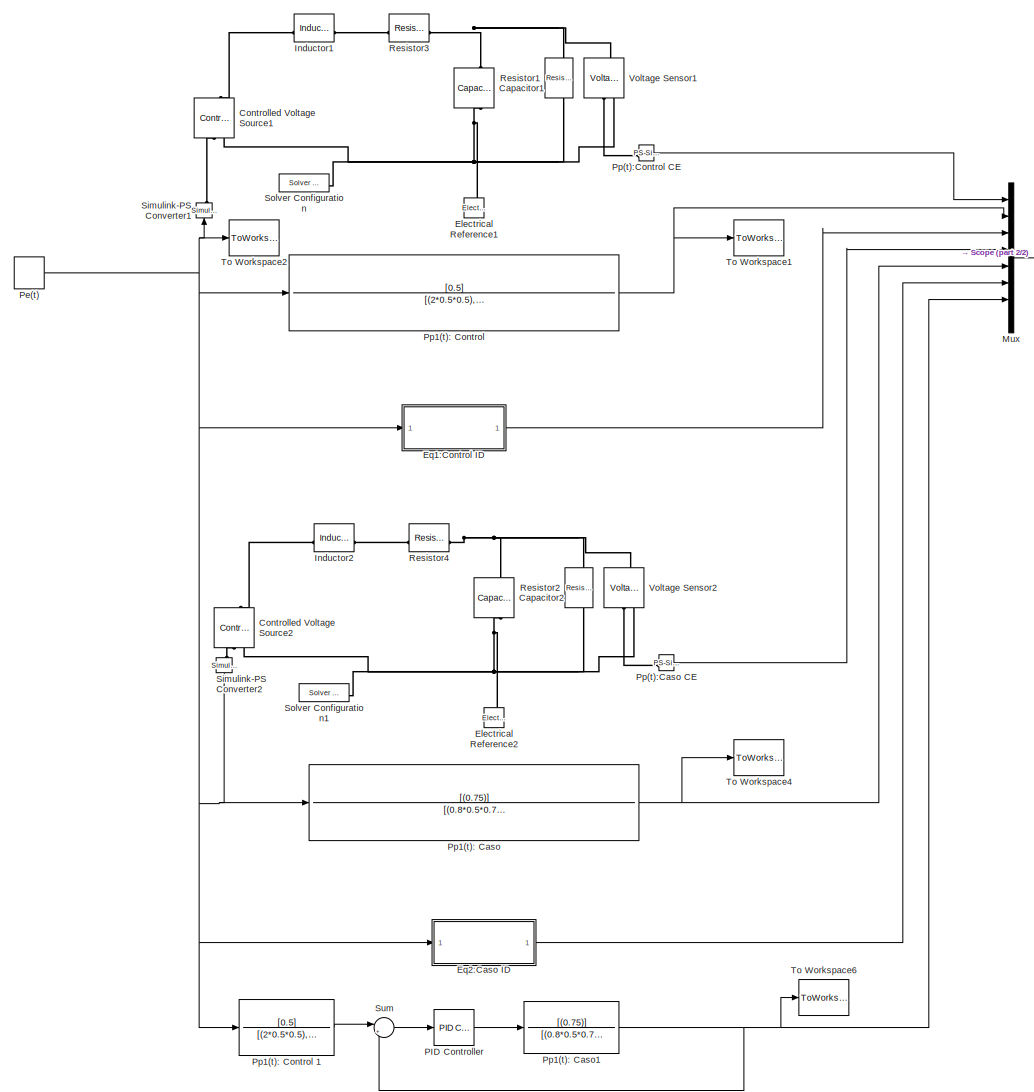
[diagram: root canvas - part 1/2, most of the canvas]
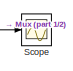
[diagram: root canvas - part 2/2, top right region]
MODEL slx_2ba7b782ccf6
KIND model
CONFIG AbsTol = auto
CONFIG EnableMultiTasking = off
CONFIG FixedStep = auto
CONFIG MaxStep = auto
CONFIG MinStep = auto
CONFIG RelTol = 1e-3
CONFIG SampleTimeConstraint = Unconstrained
CONFIG SolverName = ode15s
CONFIG StartTime = 0.0
CONFIG StopTime = 5.0
BLOCK [Reference] Capacitor1  REF=fl_lib/Electrical/Electrical Elements/Capacitor
  NameLocation = left
  SourceBlock = fl_lib/Electrical/Electrical Elements/Capacitor
  SourceType = Capacitor
BLOCK [Reference] Capacitor2  REF=fl_lib/Electrical/Electrical Elements/Capacitor
  NameLocation = left
  SourceBlock = fl_lib/Electrical/Electrical Elements/Capacitor
  SourceType = Capacitor
BLOCK [Reference] Controlled Voltage Source1  REF=fl_lib/Electrical/Electrical Sources/Controlled Voltage
Source
  NameLocation = right
  SourceBlock = fl_lib/Electrical/Electrical Sources/Controlled Voltage\nSource
  SourceType = Controlled Voltage\nSource
BLOCK [Reference] Controlled Voltage Source2  REF=fl_lib/Electrical/Electrical Sources/Controlled Voltage
Source
  NameLocation = right
  SourceBlock = fl_lib/Electrical/Electrical Sources/Controlled Voltage\nSource
  SourceType = Controlled Voltage\nSource
BLOCK [Reference] Electrical Reference1  REF=fl_lib/Electrical/Electrical Elements/Electrical Reference
  NameLocation = right
  SourceBlock = fl_lib/Electrical/Electrical Elements/Electrical Reference
  SourceType = Electrical Reference
BLOCK [Reference] Electrical Reference2  REF=fl_lib/Electrical/Electrical Elements/Electrical Reference
  NameLocation = right
  SourceBlock = fl_lib/Electrical/Electrical Elements/Electrical Reference
  SourceType = Electrical Reference
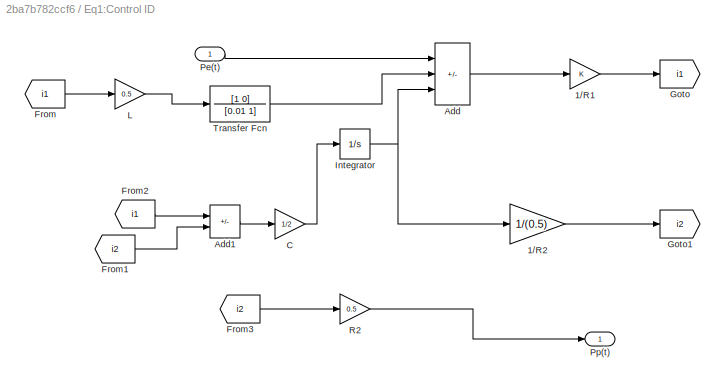
BLOCK [SubSystem] Eq1:Control ID
BLOCK [Gain] Eq1:Control ID/1//R1
BLOCK [Gain] Eq1:Control ID/1//R2
  Gain = 1/(0.5)
BLOCK [Sum] Eq1:Control ID/Add
  IconShape = rectangular
  Inputs = +--
BLOCK [Sum] Eq1:Control ID/Add1
  IconShape = rectangular
  Inputs = +-
BLOCK [Gain] Eq1:Control ID/C
  Gain = 1/2
BLOCK [From] Eq1:Control ID/From
  GotoTag = i1
BLOCK [From] Eq1:Control ID/From1
  GotoTag = i2
BLOCK [From] Eq1:Control ID/From2
  GotoTag = i1
BLOCK [From] Eq1:Control ID/From3
  GotoTag = i2
BLOCK [Goto] Eq1:Control ID/Goto
  GotoTag = i1
BLOCK [Goto] Eq1:Control ID/Goto1
  GotoTag = i2
BLOCK [Integrator] Eq1:Control ID/Integrator
BLOCK [Gain] Eq1:Control ID/L
  Gain = 0.5
BLOCK [Inport] Eq1:Control ID/Pe(t)
BLOCK [Outport] Eq1:Control ID/Pp(t)
BLOCK [Gain] Eq1:Control ID/R2
  Gain = 0.5
BLOCK [TransferFcn] Eq1:Control ID/Transfer Fcn
  Denominator = [0.01 1]
  Numerator = [1 0]
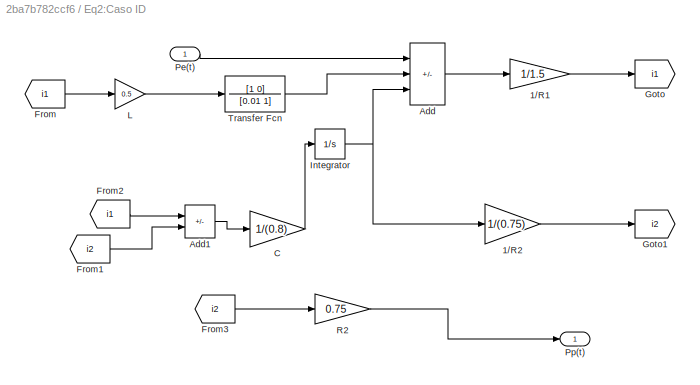
BLOCK [SubSystem] Eq2:Caso ID
BLOCK [Gain] Eq2:Caso ID/1//R1
  Gain = 1/1.5
BLOCK [Gain] Eq2:Caso ID/1//R2
  Gain = 1/(0.75)
BLOCK [Sum] Eq2:Caso ID/Add
  IconShape = rectangular
  Inputs = +--
BLOCK [Sum] Eq2:Caso ID/Add1
  IconShape = rectangular
  Inputs = +-
BLOCK [Gain] Eq2:Caso ID/C
  Gain = 1/(0.8)
BLOCK [From] Eq2:Caso ID/From
  GotoTag = i1
BLOCK [From] Eq2:Caso ID/From1
  GotoTag = i2
BLOCK [From] Eq2:Caso ID/From2
  GotoTag = i1
BLOCK [From] Eq2:Caso ID/From3
  GotoTag = i2
BLOCK [Goto] Eq2:Caso ID/Goto
  GotoTag = i1
BLOCK [Goto] Eq2:Caso ID/Goto1
  GotoTag = i2
BLOCK [Integrator] Eq2:Caso ID/Integrator
BLOCK [Gain] Eq2:Caso ID/L
  Gain = 0.5
BLOCK [Inport] Eq2:Caso ID/Pe(t)
BLOCK [Outport] Eq2:Caso ID/Pp(t)
BLOCK [Gain] Eq2:Caso ID/R2
  Gain = 0.75
BLOCK [TransferFcn] Eq2:Caso ID/Transfer Fcn
  Denominator = [0.01 1]
  Numerator = [1 0]
BLOCK [Reference] Inductor1  REF=fl_lib/Electrical/Electrical Elements/Inductor
  SourceBlock = fl_lib/Electrical/Electrical Elements/Inductor
  SourceType = Inductor
BLOCK [Reference] Inductor2  REF=fl_lib/Electrical/Electrical Elements/Inductor
  SourceBlock = fl_lib/Electrical/Electrical Elements/Inductor
  SourceType = Inductor
BLOCK [Mux] Mux
  DisplayOption = bar
  Inputs = 8
BLOCK [Reference] PID Controller  REF=slpidlib/PID Controller
  LibrarySourceBlock = simulink/Continuous/PID Controller
  SourceBlock = slpidlib/PID Controller
  SourceType = PID 1dof
BLOCK [DiscretePulseGenerator] Pe(t)
  Period = 10
  PhaseDelay = 1
  PulseType = Time based
  PulseWidth = 5
BLOCK [Reference] Pp(t):Caso CE  REF=nesl_utility/PS-Simulink
Converter
  SourceBlock = nesl_utility/PS-Simulink\nConverter
  SourceType = PS-Simulink\nConverter
BLOCK [Reference] Pp(t):Control CE  REF=nesl_utility/PS-Simulink
Converter
  SourceBlock = nesl_utility/PS-Simulink\nConverter
  SourceType = PS-Simulink\nConverter
BLOCK [TransferFcn] Pp1(t): Caso
  Denominator = [(0.8*0.5*0.75), (0.5+0.8*0.75*1.5), (1.5+0.75) ]
  Numerator = [(0.75)]
BLOCK [TransferFcn] Pp1(t): Caso1
  Denominator = [(0.8*0.5*0.75), (0.5+0.8*0.75*1.5), (1.5+0.75) ]
  Numerator = [(0.75)]
BLOCK [TransferFcn] Pp1(t): Control 
  Denominator = [(2*0.5*0.5), (0.5+2*0.5*1), (1+0.5) ]
  Numerator = [0.5]
BLOCK [TransferFcn] Pp1(t): Control 1
  Denominator = [(2*0.5*0.5), (0.5+2*0.5*1), (1+0.5) ]
  Numerator = [0.5]
BLOCK [Reference] Resistor1  REF=fl_lib/Electrical/Electrical Elements/Resistor
  NameLocation = right
  SourceBlock = fl_lib/Electrical/Electrical Elements/Resistor
  SourceType = Resistor
BLOCK [Reference] Resistor2  REF=fl_lib/Electrical/Electrical Elements/Resistor
  NameLocation = right
  SourceBlock = fl_lib/Electrical/Electrical Elements/Resistor
  SourceType = Resistor
BLOCK [Reference] Resistor3  REF=fl_lib/Electrical/Electrical Elements/Resistor
  NameLocation = top
  SourceBlock = fl_lib/Electrical/Electrical Elements/Resistor
  SourceType = Resistor
BLOCK [Reference] Resistor4  REF=fl_lib/Electrical/Electrical Elements/Resistor
  NameLocation = top
  SourceBlock = fl_lib/Electrical/Electrical Elements/Resistor
  SourceType = Resistor
BLOCK [Scope] Scope
  Floating = off
  NumInputPorts = 1
  ScopeSpecificationString = Simulink.scopes.TimeScopeBlockCfg('CurrentConfiguration', extmgr.ConfigurationSet(extmgr.Configuration('Core','General UI',true,'FigureColor',[1 1 1]),extmgr.Configuration('Core','Source UI',true),extmgr.Configuration('Sources','WiredSimulink',true),extmgr.Configuration('Visuals','Time Domain',true,'SerializedDisplays',{struct('MinYLimReal','-0.12475','MaxYLimReal','1.12278','YLabelReal','','MinYL...<+2804ch>
BLOCK [Reference] Simulink-PS Converter1  REF=nesl_utility/Simulink-PS
Converter
  NameLocation = right
  SourceBlock = nesl_utility/Simulink-PS\nConverter
  SourceType = Simulink-PS\nConverter
BLOCK [Reference] Simulink-PS Converter2  REF=nesl_utility/Simulink-PS
Converter
  NameLocation = right
  SourceBlock = nesl_utility/Simulink-PS\nConverter
  SourceType = Simulink-PS\nConverter
BLOCK [Reference] Solver Configuration  REF=nesl_utility/Solver
Configuration
  SourceBlock = nesl_utility/Solver\nConfiguration
  SourceType = Solver\nConfiguration
BLOCK [Reference] Solver Configuration1  REF=nesl_utility/Solver
Configuration
  SourceBlock = nesl_utility/Solver\nConfiguration
  SourceType = Solver\nConfiguration
BLOCK [Sum] Sum
  Inputs = |+-
BLOCK [ToWorkspace] To Workspace1
  FixptAsFi = on
  MaxDataPoints = inf
  SampleTime = -1
  VariableName = Ps1
BLOCK [ToWorkspace] To Workspace2
  FixptAsFi = on
  MaxDataPoints = inf
  SampleTime = -1
  VariableName = Pe
BLOCK [ToWorkspace] To Workspace4
  FixptAsFi = on
  MaxDataPoints = inf
  SampleTime = -1
  VariableName = Ps2
BLOCK [ToWorkspace] To Workspace6
  FixptAsFi = on
  MaxDataPoints = inf
  SampleTime = -1
  VariableName = Ps3
BLOCK [Reference] Voltage Sensor1  REF=fl_lib/Electrical/Electrical Sensors/Voltage Sensor
  NameLocation = right
  SourceBlock = fl_lib/Electrical/Electrical Sensors/Voltage Sensor
  SourceType = Voltage Sensor
BLOCK [Reference] Voltage Sensor2  REF=fl_lib/Electrical/Electrical Sensors/Voltage Sensor
  NameLocation = right
  SourceBlock = fl_lib/Electrical/Electrical Sensors/Voltage Sensor
  SourceType = Voltage Sensor
LINE Eq1:Control ID/1//R1:1 -> Eq1:Control ID/Goto:1
LINE Eq1:Control ID/1//R2:1 -> Eq1:Control ID/Goto1:1
LINE Eq1:Control ID/Add1:1 -> Eq1:Control ID/C:1
LINE Eq1:Control ID/Add:1 -> Eq1:Control ID/1//R1:1
LINE Eq1:Control ID/C:1 -> Eq1:Control ID/Integrator:1
LINE Eq1:Control ID/From1:1 -> Eq1:Control ID/Add1:2
LINE Eq1:Control ID/From2:1 -> Eq1:Control ID/Add1:1
LINE Eq1:Control ID/From3:1 -> Eq1:Control ID/R2:1
LINE Eq1:Control ID/From:1 -> Eq1:Control ID/L:1
NET Eq1:Control ID/Integrator:1 -> Eq1:Control ID/1//R2:1, Eq1:Control ID/Add:3
LINE Eq1:Control ID/L:1 -> Eq1:Control ID/Transfer Fcn:1
LINE Eq1:Control ID/Pe(t):1 -> Eq1:Control ID/Add:1
LINE Eq1:Control ID/R2:1 -> Eq1:Control ID/Pp(t):1
LINE Eq1:Control ID/Transfer Fcn:1 -> Eq1:Control ID/Add:2
LINE Eq1:Control ID:1 -> Mux:3
LINE Eq2:Caso ID/1//R1:1 -> Eq2:Caso ID/Goto:1
LINE Eq2:Caso ID/1//R2:1 -> Eq2:Caso ID/Goto1:1
LINE Eq2:Caso ID/Add1:1 -> Eq2:Caso ID/C:1
LINE Eq2:Caso ID/Add:1 -> Eq2:Caso ID/1//R1:1
LINE Eq2:Caso ID/C:1 -> Eq2:Caso ID/Integrator:1
LINE Eq2:Caso ID/From1:1 -> Eq2:Caso ID/Add1:2
LINE Eq2:Caso ID/From2:1 -> Eq2:Caso ID/Add1:1
LINE Eq2:Caso ID/From3:1 -> Eq2:Caso ID/R2:1
LINE Eq2:Caso ID/From:1 -> Eq2:Caso ID/L:1
NET Eq2:Caso ID/Integrator:1 -> Eq2:Caso ID/1//R2:1, Eq2:Caso ID/Add:3
LINE Eq2:Caso ID/L:1 -> Eq2:Caso ID/Transfer Fcn:1
LINE Eq2:Caso ID/Pe(t):1 -> Eq2:Caso ID/Add:1
LINE Eq2:Caso ID/R2:1 -> Eq2:Caso ID/Pp(t):1
LINE Eq2:Caso ID/Transfer Fcn:1 -> Eq2:Caso ID/Add:2
LINE Eq2:Caso ID:1 -> Mux:6
LINE Mux:1 -> Scope:1
LINE PID Controller:1 -> Pp1(t): Caso1:1
NET Pe(t):1 -> Eq1:Control ID:1, Eq2:Caso ID:1, Pp1(t): Caso:1, Pp1(t): Control 1:1, Pp1(t): Control :1, Simulink-PS Converter1:1, Simulink-PS Converter2:1, To Workspace2:1
LINE Pp(t):Caso CE:1 -> Mux:4
LINE Pp(t):Control CE:1 -> Mux:1
NET Pp1(t): Caso1:1 -> Mux:7, Sum:2, To Workspace6:1
NET Pp1(t): Caso:1 -> Mux:5, To Workspace4:1
LINE Pp1(t): Control 1:1 -> Sum:1
NET Pp1(t): Control :1 -> Mux:2, To Workspace1:1
LINE Sum:1 -> PID Controller:1
PNET net1: Capacitor1:LConn1 -- Resistor1:RConn1 -- Resistor3:LConn1 -- Voltage Sensor1:LConn1
PNET net2: Capacitor1:RConn1 -- Controlled Voltage Source1:RConn2 -- Electrical Reference1:LConn1 -- Resistor1:LConn1 -- Solver Configuration:RConn1 -- Voltage Sensor1:RConn2
PNET net3: Capacitor2:LConn1 -- Resistor2:RConn1 -- Resistor4:LConn1 -- Voltage Sensor2:LConn1
PNET net4: Capacitor2:RConn1 -- Controlled Voltage Source2:RConn2 -- Electrical Reference2:LConn1 -- Resistor2:LConn1 -- Solver Configuration1:RConn1 -- Voltage Sensor2:RConn2
PLINE Controlled Voltage Source1:LConn1 -- Inductor1:LConn1
PLINE Controlled Voltage Source1:RConn1 -- Simulink-PS Converter1:RConn1
PLINE Controlled Voltage Source2:LConn1 -- Inductor2:LConn1
PLINE Controlled Voltage Source2:RConn1 -- Simulink-PS Converter2:RConn1
PLINE Inductor1:RConn1 -- Resistor3:RConn1
PLINE Inductor2:RConn1 -- Resistor4:RConn1
PLINE Pp(t):Caso CE:LConn1 -- Voltage Sensor2:RConn1
PLINE Pp(t):Control CE:LConn1 -- Voltage Sensor1:RConn1
note: NET lines group one-source signal fan-out (src -> all destinations, sorted); 1:1 wires keep LINE; PNET lines group multi-terminal physical nets as a canonical sorted terminal list (undirected conserving connections); 2-terminal nets keep the pairwise PLINE form
